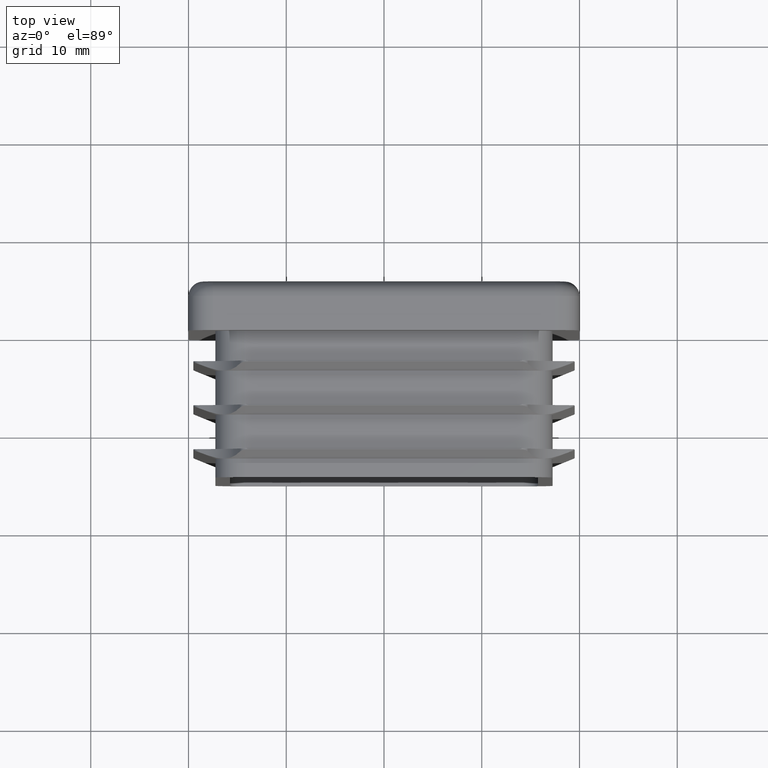
[diagram: clean part render]
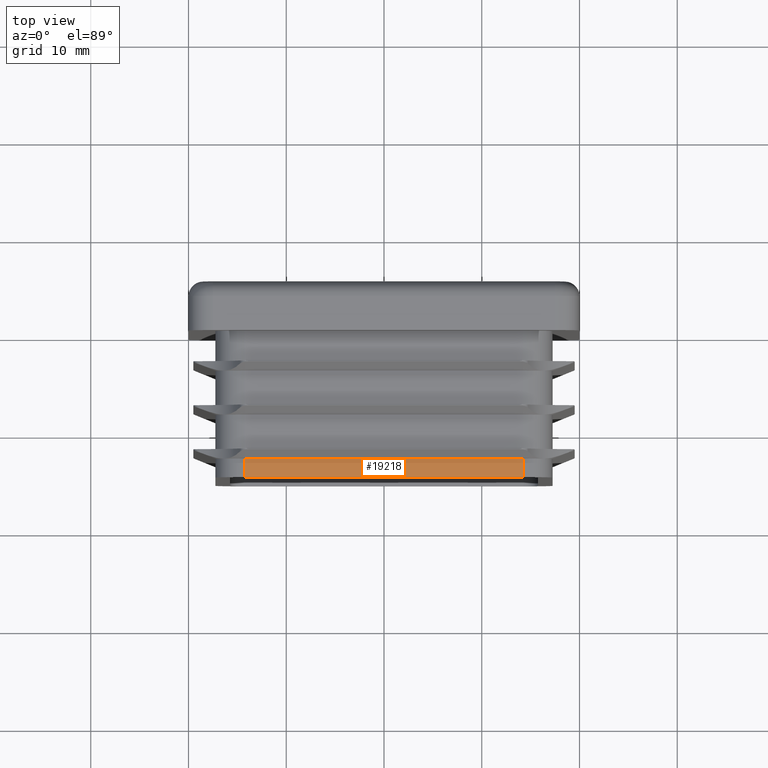
[diagram: same view with one face highlighted and labeled with its STEP entity id]
A machine part, top view. The second image highlights one B-rep face of the part: STEP entity #19218.
In plain terms, the highlighted planar face has unit normal (0, 0, -1).
Its self-contained STEP definition (entity closure, byte-faithful):
#332 = LINE ( 'NONE', #857, #15638 ) ;
#857 = CARTESIAN_POINT ( 'NONE',  ( 14.24999999999999822, -15.00000000000000000, 27.25000000000000355 ) ) ;
#872 = AXIS2_PLACEMENT_3D ( 'NONE', #5190, #9878, #8257 ) ;
#965 = CARTESIAN_POINT ( 'NONE',  ( -14.25000000000000533, -15.00000000000000000, 27.25000000000000355 ) ) ;
#1079 = CARTESIAN_POINT ( 'NONE',  ( 14.24999999999999822, -15.00000000000000000, 27.25000000000000355 ) ) ;
#2111 = EDGE_CURVE ( 'NONE', #15459, #18572, #3116, .T. ) ;
#2209 = DIRECTION ( 'NONE',  ( -0.000000000000000000, 1.000000000000000000, -0.000000000000000000 ) ) ;
#2677 = VECTOR ( 'NONE', #17519, 1000.000000000000000 ) ;
#3116 = LINE ( 'NONE', #965, #14224 ) ;
#4521 = ORIENTED_EDGE ( 'NONE', *, *, #2111, .F. ) ;
#5190 = CARTESIAN_POINT ( 'NONE',  ( -14.25000000000000533, -15.00000000000000000, 27.25000000000000355 ) ) ;
#5682 = LINE ( 'NONE', #7356, #2677 ) ;
#6329 = ORIENTED_EDGE ( 'NONE', *, *, #17959, .F. ) ;
#6545 = CARTESIAN_POINT ( 'NONE',  ( -14.25000000000000533, -15.00000000000000000, 27.25000000000000355 ) ) ;
#6589 = ORIENTED_EDGE ( 'NONE', *, *, #9104, .F. ) ;
#7356 = CARTESIAN_POINT ( 'NONE',  ( -14.24999999999998224, -13.10000000000000142, 27.25000000000008882 ) ) ;
#7879 = VECTOR ( 'NONE', #16924, 1000.000000000000000 ) ;
#8257 = DIRECTION ( 'NONE',  ( -1.000000000000000000, 0.000000000000000000, -0.000000000000000000 ) ) ;
#9104 = EDGE_CURVE ( 'NONE', #18572, #11404, #5682, .T. ) ;
#9460 = ORIENTED_EDGE ( 'NONE', *, *, #10137, .T. ) ;
#9522 = EDGE_LOOP ( 'NONE', ( #6589, #4521, #6329, #9460 ) ) ;
#9878 = DIRECTION ( 'NONE',  ( 0.000000000000000000, 0.000000000000000000, -1.000000000000000000 ) ) ;
#10137 = EDGE_CURVE ( 'NONE', #16248, #11404, #332, .T. ) ;
#11404 = VERTEX_POINT ( 'NONE', #19033 ) ;
#12655 = DIRECTION ( 'NONE',  ( -0.000000000000000000, 1.000000000000000000, -0.000000000000000000 ) ) ;
#13198 = LINE ( 'NONE', #6545, #7879 ) ;
#13757 = CARTESIAN_POINT ( 'NONE',  ( -14.25000000000000533, -15.00000000000000000, 27.25000000000000355 ) ) ;
#13889 = FACE_OUTER_BOUND ( 'NONE', #9522, .T. ) ;
#14224 = VECTOR ( 'NONE', #2209, 1000.000000000000000 ) ;
#15459 = VERTEX_POINT ( 'NONE', #13757 ) ;
#15638 = VECTOR ( 'NONE', #12655, 1000.000000000000000 ) ;
#16248 = VERTEX_POINT ( 'NONE', #1079 ) ;
#16924 = DIRECTION ( 'NONE',  ( -1.000000000000000000, -0.000000000000000000, -0.000000000000000000 ) ) ;
#17181 = PLANE ( 'NONE',  #872 ) ;
#17519 = DIRECTION ( 'NONE',  ( 1.000000000000000000, 0.000000000000000000, 0.000000000000000000 ) ) ;
#17959 = EDGE_CURVE ( 'NONE', #16248, #15459, #13198, .T. ) ;
#18498 = CARTESIAN_POINT ( 'NONE',  ( -14.25000000000000533, -13.10000000000003517, 27.25000000000000355 ) ) ;
#18572 = VERTEX_POINT ( 'NONE', #18498 ) ;
#19033 = CARTESIAN_POINT ( 'NONE',  ( 14.24999999999999822, -13.10000000000003517, 27.25000000000000355 ) ) ;
#19218 = ADVANCED_FACE ( 'NONE', ( #13889 ), #17181, .F. ) ;